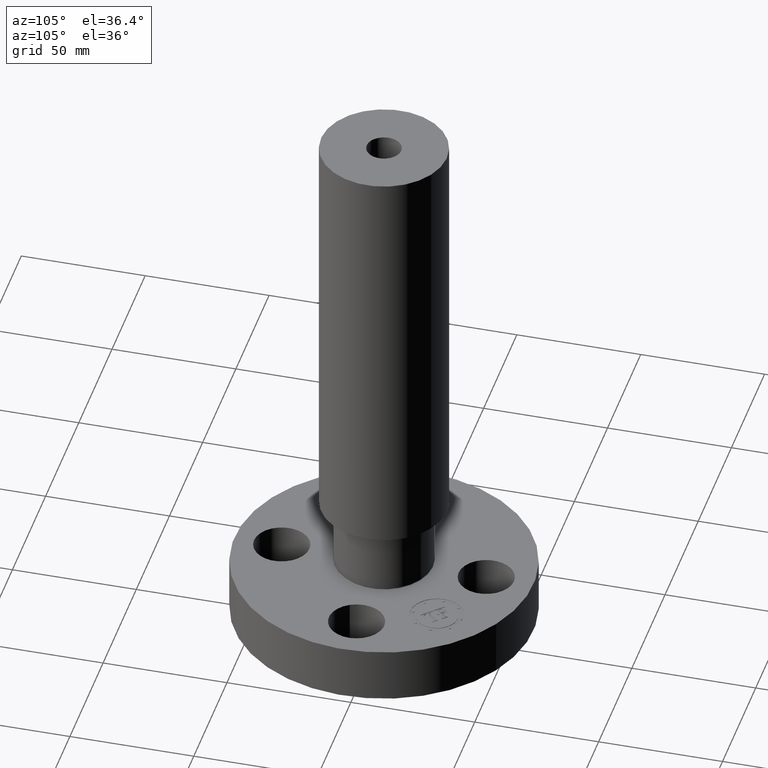
[diagram: clean part render]
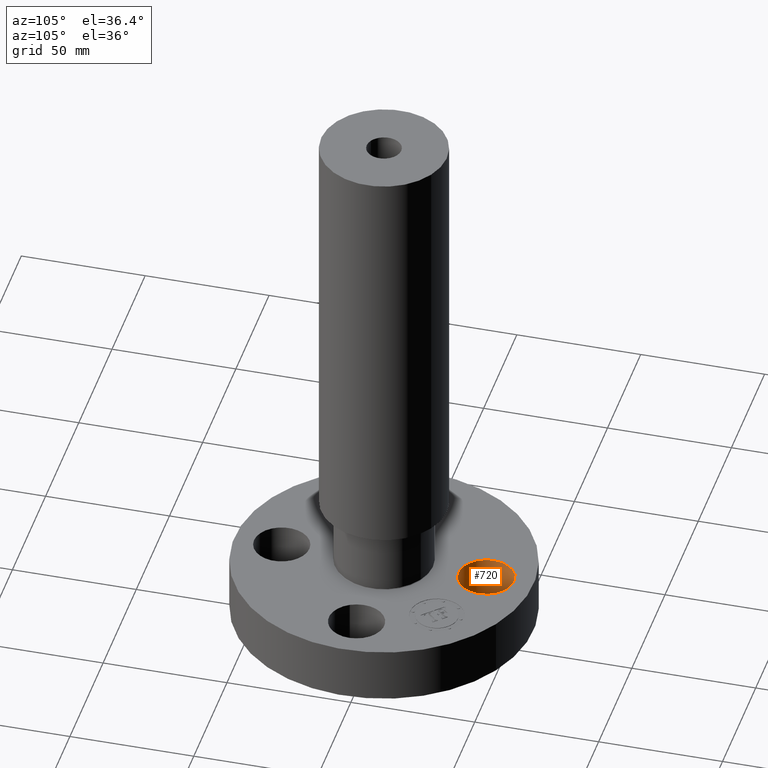
[diagram: same view with one face highlighted and labeled with its STEP entity id]
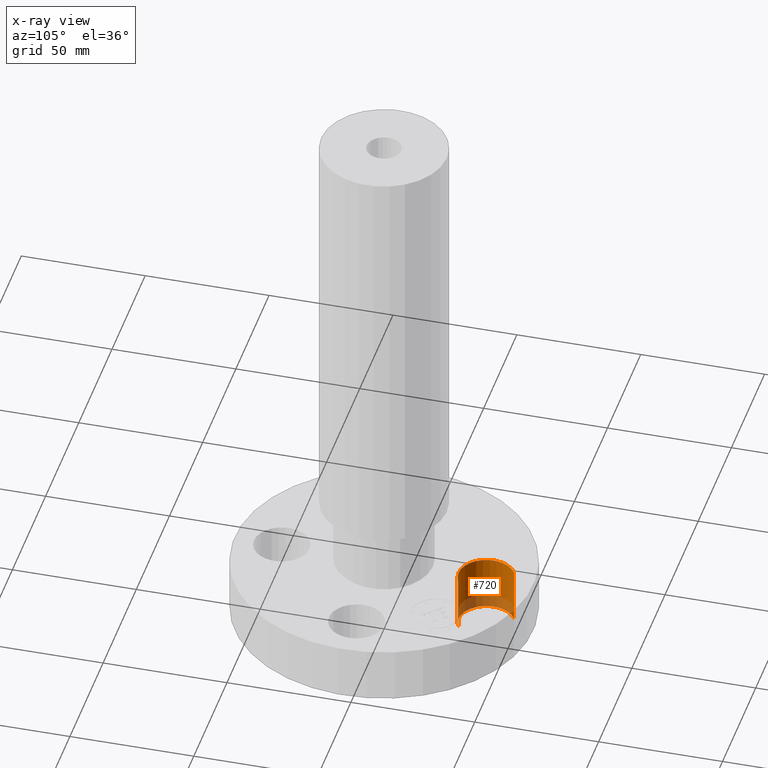
[diagram: x-ray of the same camera — body ghosted, the highlighted face saturated]
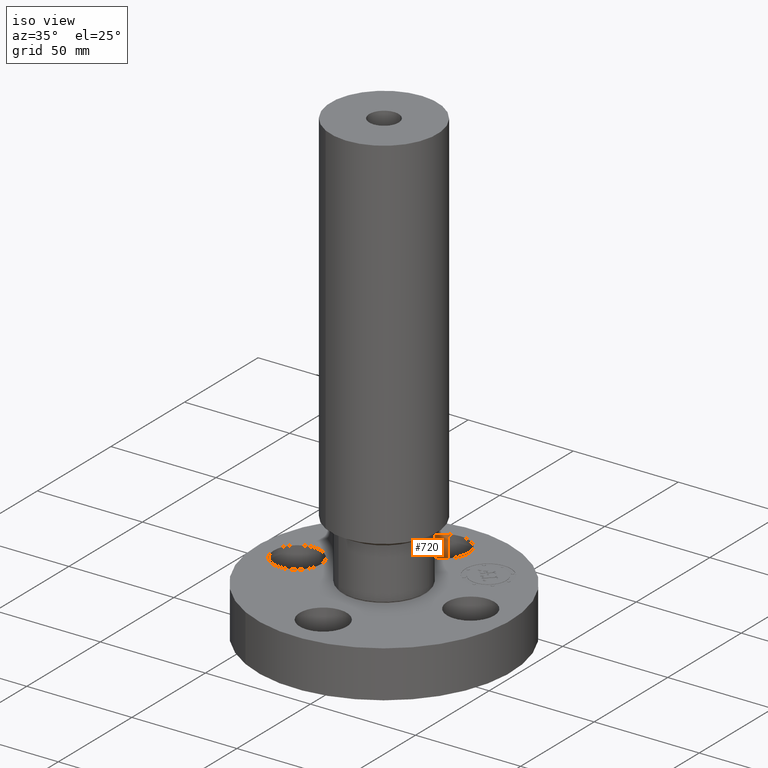
[diagram: same view with one face highlighted and labeled with its STEP entity id]
A machine part, auxiliary view. The second image highlights one B-rep face of the part: STEP entity #720.
The next image is the same camera in x-ray: the body ghosted, the highlighted face saturated — about 25% of this face is hidden behind the body in this view.
A second angle (iso view) of the same face is appended — the face is thin or edge-on in the first view.
In plain terms, the highlighted cylindrical surface (edge-blend (fillet) strip) has radius 11.176 mm, axis along (0, 0, 1).
Its self-contained STEP definition (entity closure, byte-faithful):
#172=AXIS2_PLACEMENT_3D('Circle Axis2P3D',#170,#171,$) ;
#681=AXIS2_PLACEMENT_3D('Cylinder Axis2P3D',#678,#679,#680) ;
#711=AXIS2_PLACEMENT_3D('Circle Axis2P3D',#709,#710,$) ;
#165=CARTESIAN_POINT('Vertex',(-0.210947236987,2.01113632724,0.)) ;
#167=CARTESIAN_POINT('Vertex',(0.210947236987,1.23886367277,0.)) ;
#170=CARTESIAN_POINT('Axis2P3D Location',(-2.09805925913E-016,1.62500000001,0.)) ;
#678=CARTESIAN_POINT('Axis2P3D Location',(-2.98507657293E-016,1.62500000001,0.00393700787402)) ;
#683=CARTESIAN_POINT('Line Origine',(0.210947236987,1.23886367277,0.440000000002)) ;
#687=CARTESIAN_POINT('Vertex',(0.210947236987,1.23886367277,0.880000000004)) ;
#694=CARTESIAN_POINT('Vertex',(-0.210947236987,2.01113632724,0.880000000004)) ;
#697=CARTESIAN_POINT('Line Origine',(-0.210947236987,2.01113632724,0.440000000002)) ;
#709=CARTESIAN_POINT('Axis2P3D Location',(-2.98507657293E-016,1.62500000001,0.880000000004)) ;
#171=DIRECTION('Axis2P3D Direction',(0.,0.,-0.0393700787402)) ;
#679=DIRECTION('Axis2P3D Direction',(0.,0.,0.0393700787402)) ;
#680=DIRECTION('Axis2P3D XDirection',(-0.0188750212049,0.0345504945626,0.)) ;
#684=DIRECTION('Vector Direction',(0.,0.,0.0393700787402)) ;
#698=DIRECTION('Vector Direction',(0.,0.,0.0393700787402)) ;
#710=DIRECTION('Axis2P3D Direction',(0.,0.,0.0393700787402)) ;
#685=VECTOR('Line Direction',#684,0.0393700787402) ;
#699=VECTOR('Line Direction',#698,0.0393700787402) ;
#715=ORIENTED_EDGE('',*,*,#701,.F.) ;
#716=ORIENTED_EDGE('',*,*,#713,.F.) ;
#717=ORIENTED_EDGE('',*,*,#689,.T.) ;
#718=ORIENTED_EDGE('',*,*,#174,.T.) ;
#720=ADVANCED_FACE('PartBody',(#719),#682,.F.) ;
#173=CIRCLE('generated circle',#172,0.440000000002) ;
#712=CIRCLE('generated circle',#711,0.440000000002) ;
#682=CYLINDRICAL_SURFACE('generated cylinder',#681,0.440000000002) ;
#174=EDGE_CURVE('',#168,#166,#173,.T.) ;
#689=EDGE_CURVE('',#688,#168,#686,.F.) ;
#701=EDGE_CURVE('',#695,#166,#700,.F.) ;
#713=EDGE_CURVE('',#688,#695,#712,.F.) ;
#714=EDGE_LOOP('',(#715,#716,#717,#718)) ;
#719=FACE_OUTER_BOUND('',#714,.T.) ;
#686=LINE('Line',#683,#685) ;
#700=LINE('Line',#697,#699) ;
#166=VERTEX_POINT('',#165) ;
#168=VERTEX_POINT('',#167) ;
#688=VERTEX_POINT('',#687) ;
#695=VERTEX_POINT('',#694) ;